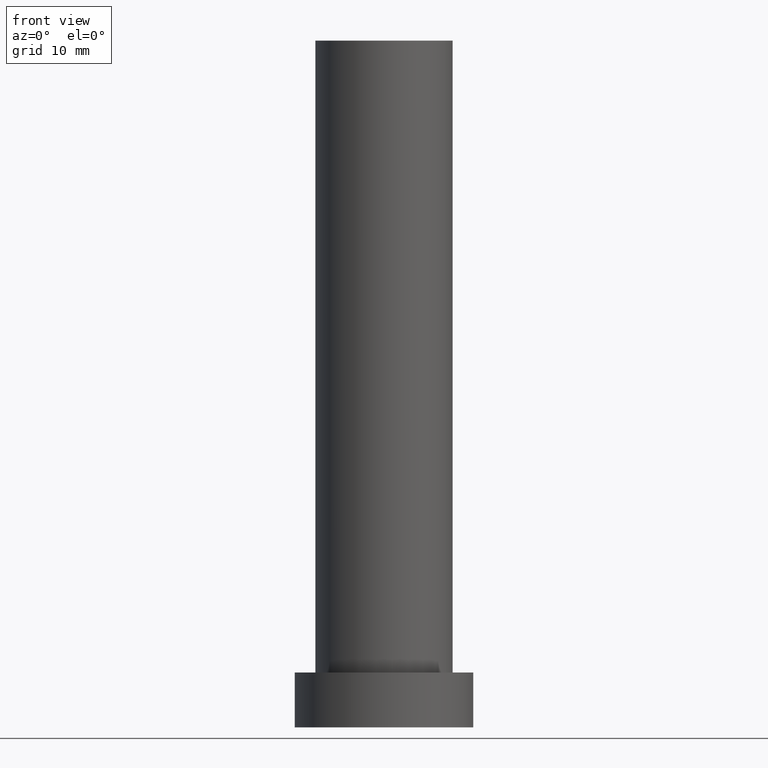
[diagram: clean part render]
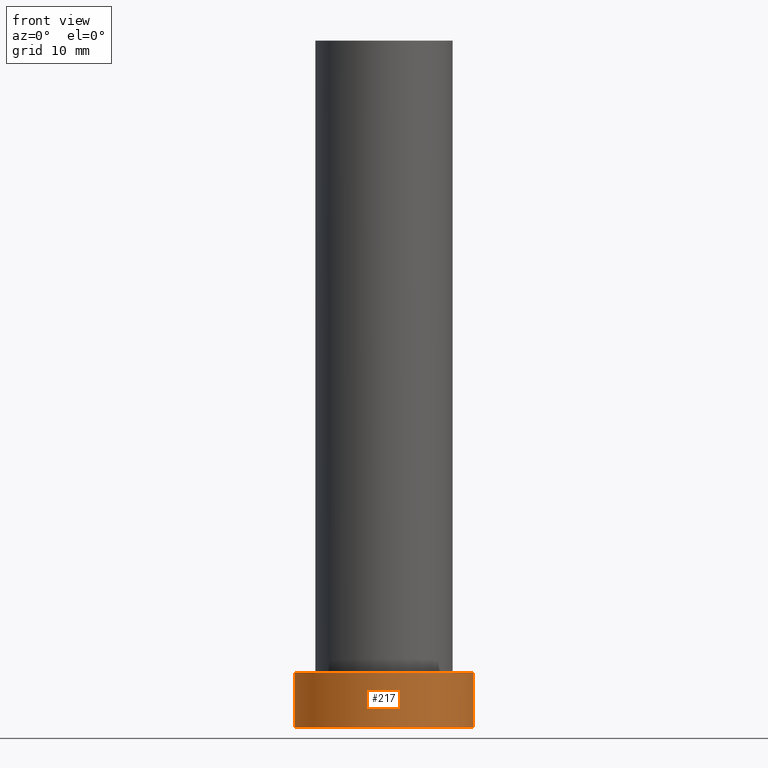
[diagram: same view with one face highlighted and labeled with its STEP entity id]
A machine part, front view. The second image highlights one B-rep face of the part: STEP entity #217.
In plain terms, the highlighted cylindrical surface (partial cylindrical patch) has radius 13 mm, axis along (-0, -0, -1).
Its self-contained STEP definition (entity closure, byte-faithful):
#10 = LINE ( 'NONE', #71, #80 ) ;
#13 = CARTESIAN_POINT ( 'NONE',  ( -13.00000000000000178, 0.000000000000000000, 0.000000000000000000 ) ) ;
#14 = EDGE_CURVE ( 'NONE', #55, #204, #79, .T. ) ;
#17 = CARTESIAN_POINT ( 'NONE',  ( 0.000000000000000000, 0.000000000000000000, 0.000000000000000000 ) ) ;
#18 = EDGE_CURVE ( 'NONE', #179, #55, #141, .T. ) ;
#20 = DIRECTION ( 'NONE',  ( 1.000000000000000000, 0.000000000000000000, 0.000000000000000000 ) ) ;
#34 = DIRECTION ( 'NONE',  ( -0.000000000000000000, -0.000000000000000000, -1.000000000000000000 ) ) ;
#35 = EDGE_CURVE ( 'NONE', #238, #204, #100, .T. ) ;
#46 = DIRECTION ( 'NONE',  ( -0.000000000000000000, -0.000000000000000000, -1.000000000000000000 ) ) ;
#51 = DIRECTION ( 'NONE',  ( -1.000000000000000000, 0.000000000000000000, 0.000000000000000000 ) ) ;
#55 = VERTEX_POINT ( 'NONE', #121 ) ;
#56 = AXIS2_PLACEMENT_3D ( 'NONE', #67, #46, #51 ) ;
#61 = EDGE_LOOP ( 'NONE', ( #113, #108, #98, #192 ) ) ;
#67 = CARTESIAN_POINT ( 'NONE',  ( 0.000000000000000000, 0.000000000000000000, 8.000000000000000000 ) ) ;
#71 = CARTESIAN_POINT ( 'NONE',  ( -13.00000000000000178, 0.000000000000000000, 8.000000000000000000 ) ) ;
#79 = LINE ( 'NONE', #97, #246 ) ;
#80 = VECTOR ( 'NONE', #207, 1000.000000000000000 ) ;
#97 = CARTESIAN_POINT ( 'NONE',  ( 13.00000000000000178, 1.592040838891559293E-15, 8.000000000000000000 ) ) ;
#98 = ORIENTED_EDGE ( 'NONE', *, *, #187, .T. ) ;
#100 = CIRCLE ( 'NONE', #239, 13.00000000000000178 ) ;
#108 = ORIENTED_EDGE ( 'NONE', *, *, #18, .F. ) ;
#110 = CARTESIAN_POINT ( 'NONE',  ( 13.00000000000000178, 1.592040838891559293E-15, 0.000000000000000000 ) ) ;
#113 = ORIENTED_EDGE ( 'NONE', *, *, #14, .F. ) ;
#121 = CARTESIAN_POINT ( 'NONE',  ( 13.00000000000000178, 1.592040838891559293E-15, 8.000000000000000000 ) ) ;
#134 = CARTESIAN_POINT ( 'NONE',  ( -13.00000000000000178, 0.000000000000000000, 8.000000000000000000 ) ) ;
#141 = CIRCLE ( 'NONE', #209, 13.00000000000000178 ) ;
#158 = DIRECTION ( 'NONE',  ( 0.000000000000000000, 0.000000000000000000, 1.000000000000000000 ) ) ;
#159 = DIRECTION ( 'NONE',  ( 0.000000000000000000, 0.000000000000000000, 1.000000000000000000 ) ) ;
#167 = CYLINDRICAL_SURFACE ( 'NONE', #56, 13.00000000000000178 ) ;
#175 = CARTESIAN_POINT ( 'NONE',  ( 0.000000000000000000, 0.000000000000000000, 8.000000000000000000 ) ) ;
#179 = VERTEX_POINT ( 'NONE', #134 ) ;
#187 = EDGE_CURVE ( 'NONE', #179, #238, #10, .T. ) ;
#192 = ORIENTED_EDGE ( 'NONE', *, *, #35, .T. ) ;
#204 = VERTEX_POINT ( 'NONE', #110 ) ;
#207 = DIRECTION ( 'NONE',  ( -0.000000000000000000, -0.000000000000000000, -1.000000000000000000 ) ) ;
#209 = AXIS2_PLACEMENT_3D ( 'NONE', #175, #159, #20 ) ;
#214 = DIRECTION ( 'NONE',  ( 1.000000000000000000, 0.000000000000000000, 0.000000000000000000 ) ) ;
#217 = ADVANCED_FACE ( 'NONE', ( #242 ), #167, .T. ) ;
#238 = VERTEX_POINT ( 'NONE', #13 ) ;
#239 = AXIS2_PLACEMENT_3D ( 'NONE', #17, #158, #214 ) ;
#242 = FACE_OUTER_BOUND ( 'NONE', #61, .T. ) ;
#246 = VECTOR ( 'NONE', #34, 1000.000000000000000 ) ;